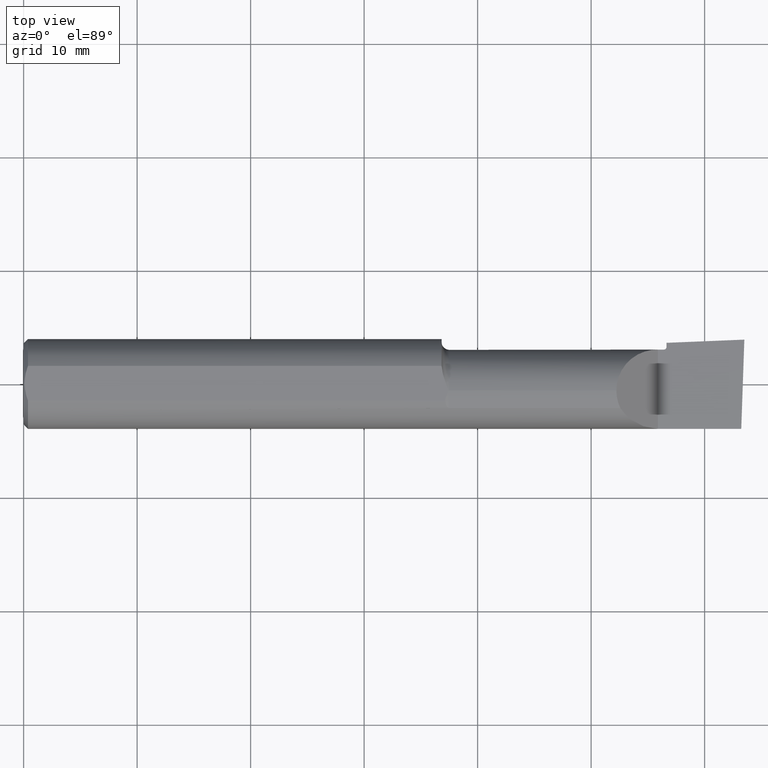
[diagram: clean part render]
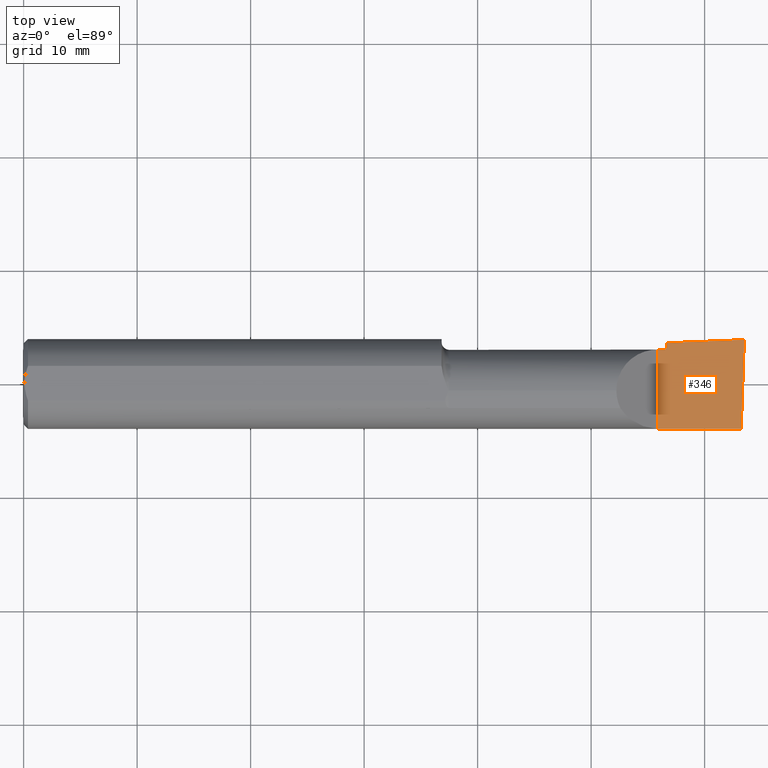
[diagram: same view with one face highlighted and labeled with its STEP entity id]
A machine part, top view. The second image highlights one B-rep face of the part: STEP entity #346.
In plain terms, the highlighted planar face has unit normal (-0, 0, -1).
Its self-contained STEP definition (entity closure, byte-faithful):
#11 = LINE ( 'NONE', #235, #178 ) ;
#35 = CARTESIAN_POINT ( 'NONE',  ( 2.499553225608604823, 0.1407279727905360600, 3.826894855694925850E-18 ) ) ;
#36 = ORIENTED_EDGE ( 'NONE', *, *, #201, .F. ) ;
#58 = VECTOR ( 'NONE', #231, 39.37007874015748143 ) ;
#79 = VERTEX_POINT ( 'NONE', #189 ) ;
#106 = DIRECTION ( 'NONE',  ( -1.000000000000000000, 0.000000000000000000, 0.000000000000000000 ) ) ;
#109 = ORIENTED_EDGE ( 'NONE', *, *, #568, .F. ) ;
#112 = ORIENTED_EDGE ( 'NONE', *, *, #639, .F. ) ;
#146 = FACE_OUTER_BOUND ( 'NONE', #663, .T. ) ;
#178 = VECTOR ( 'NONE', #464, 39.37007874015748143 ) ;
#179 = CARTESIAN_POINT ( 'NONE',  ( 2.229999999999999538, 0.1289000000000001256, 0.000000000000000000 ) ) ;
#189 = CARTESIAN_POINT ( 'NONE',  ( 2.199999999999999289, 0.1189000000000001028, 3.826894855694925850E-18 ) ) ;
#201 = EDGE_CURVE ( 'NONE', #208, #616, #223, .T. ) ;
#203 = CARTESIAN_POINT ( 'NONE',  ( 2.229999999999999538, 0.1425688816766004785, 0.000000000000000000 ) ) ;
#208 = VERTEX_POINT ( 'NONE', #203 ) ;
#214 = DIRECTION ( 'NONE',  ( 0.03463576215158579996, 0.9994000019912840926, 0.000000000000000000 ) ) ;
#215 = ORIENTED_EDGE ( 'NONE', *, *, #402, .F. ) ;
#223 = B_SPLINE_CURVE_WITH_KNOTS ( 'NONE', 3,
 ( #350, #528, #289, #524, #698, #721, #488 ),
 .UNSPECIFIED., .F., .F.,
 ( 4, 3, 4 ),
 ( 0.009746653936076972100, 0.009910325884368138827, 0.01661039546317633411 ),
 .UNSPECIFIED. ) ;
#231 = DIRECTION ( 'NONE',  ( 0.000000000000000000, 1.000000000000000000, 0.000000000000000000 ) ) ;
#235 = CARTESIAN_POINT ( 'NONE',  ( 2.056000000000000050, -0.1560999999999999888, 3.826894855694925850E-18 ) ) ;
#238 = DIRECTION ( 'NONE',  ( 1.000000000000000000, 0.000000000000000000, 0.000000000000000000 ) ) ;
#245 = EDGE_CURVE ( 'NONE', #581, #616, #662, .T. ) ;
#247 = CARTESIAN_POINT ( 'NONE',  ( 2.199999999999999289, -0.1560999999999999888, 3.826894855694925850E-18 ) ) ;
#249 = DIRECTION ( 'NONE',  ( -1.000000000000000000, 0.000000000000000000, 0.000000000000000000 ) ) ;
#254 = ORIENTED_EDGE ( 'NONE', *, *, #245, .T. ) ;
#275 = VERTEX_POINT ( 'NONE', #604 ) ;
#289 = CARTESIAN_POINT ( 'NONE',  ( 2.234292250889879039, 0.1427447335443261800, 3.826894855694925850E-18 ) ) ;
#333 = AXIS2_PLACEMENT_3D ( 'NONE', #491, #484, #249 ) ;
#346 = ADVANCED_FACE ( 'NONE', ( #146 ), #394, .F. ) ;
#350 = CARTESIAN_POINT ( 'NONE',  ( 2.229999999999999538, 0.1425688816766004785, 0.000000000000000000 ) ) ;
#367 = CARTESIAN_POINT ( 'NONE',  ( 2.500000000000000000, 0.1536194554637218546, 2.048885995248197414E-16 ) ) ;
#394 = PLANE ( 'NONE',  #707 ) ;
#402 = EDGE_CURVE ( 'NONE', #549, #208, #451, .T. ) ;
#406 = CARTESIAN_POINT ( 'NONE',  ( 2.489266190342419360, -0.1561000000000000165, 3.826894855694925850E-18 ) ) ;
#412 = LINE ( 'NONE', #247, #696 ) ;
#423 = VERTEX_POINT ( 'NONE', #680 ) ;
#451 = LINE ( 'NONE', #671, #58 ) ;
#464 = DIRECTION ( 'NONE',  ( 1.000000000000000000, -0.000000000000000000, -0.000000000000000000 ) ) ;
#466 = ORIENTED_EDGE ( 'NONE', *, *, #589, .T. ) ;
#472 = DIRECTION ( 'NONE',  ( 0.000000000000000000, -1.000000000000000000, 0.000000000000000000 ) ) ;
#480 = EDGE_CURVE ( 'NONE', #79, #423, #412, .T. ) ;
#484 = DIRECTION ( 'NONE',  ( 0.000000000000000000, 0.000000000000000000, 1.000000000000000000 ) ) ;
#488 = CARTESIAN_POINT ( 'NONE',  ( 2.500000000000000000, 0.1536194554637218546, 2.048885995248197414E-16 ) ) ;
#491 = CARTESIAN_POINT ( 'NONE',  ( 2.219999999999999751, 0.1289000000000001256, 0.000000000000000000 ) ) ;
#495 = VECTOR ( 'NONE', #238, 39.37007874015748143 ) ;
#511 = CARTESIAN_POINT ( 'NONE',  ( 2.056000000000000050, 0.1560999999999999888, 3.826894855694925850E-18 ) ) ;
#523 = LINE ( 'NONE', #590, #495 ) ;
#524 = CARTESIAN_POINT ( 'NONE',  ( 2.236438376473965040, 0.1428326560817834989, 3.826894855694925850E-18 ) ) ;
#528 = CARTESIAN_POINT ( 'NONE',  ( 2.232146125398431824, 0.1426568087456045186, 3.826894855694925850E-18 ) ) ;
#530 = ORIENTED_EDGE ( 'NONE', *, *, #480, .T. ) ;
#549 = VERTEX_POINT ( 'NONE', #179 ) ;
#568 = EDGE_CURVE ( 'NONE', #79, #275, #523, .T. ) ;
#581 = VERTEX_POINT ( 'NONE', #406 ) ;
#589 = EDGE_CURVE ( 'NONE', #423, #581, #11, .T. ) ;
#590 = CARTESIAN_POINT ( 'NONE',  ( 0.000000000000000000, 0.1189000000000001028, 3.826894855694925850E-18 ) ) ;
#604 = CARTESIAN_POINT ( 'NONE',  ( 2.219999999999999751, 0.1189000000000001583, 3.826894855694927391E-18 ) ) ;
#616 = VERTEX_POINT ( 'NONE', #367 ) ;
#618 = DIRECTION ( 'NONE',  ( -0.000000000000000000, 0.000000000000000000, -1.000000000000000000 ) ) ;
#639 = EDGE_CURVE ( 'NONE', #275, #549, #659, .T. ) ;
#659 = CIRCLE ( 'NONE', #333, 0.009999999999999892655 ) ;
#662 = LINE ( 'NONE', #35, #673 ) ;
#663 = EDGE_LOOP ( 'NONE', ( #466, #254, #36, #215, #112, #109, #530 ) ) ;
#671 = CARTESIAN_POINT ( 'NONE',  ( 2.229999999999999538, 0.1560999999999999888, 3.826894855694925850E-18 ) ) ;
#673 = VECTOR ( 'NONE', #214, 39.37007874015748143 ) ;
#680 = CARTESIAN_POINT ( 'NONE',  ( 2.199999999999999289, -0.1560999999999999888, 3.826894855694925850E-18 ) ) ;
#696 = VECTOR ( 'NONE', #472, 39.37007874015748143 ) ;
#698 = CARTESIAN_POINT ( 'NONE',  ( 2.324292103802905629, 0.1464318502245317566, 3.826894855694925850E-18 ) ) ;
#707 = AXIS2_PLACEMENT_3D ( 'NONE', #511, #618, #106 ) ;
#721 = CARTESIAN_POINT ( 'NONE',  ( 2.412145986017138366, 0.1500272651619396491, 3.826894855694925850E-18 ) ) ;